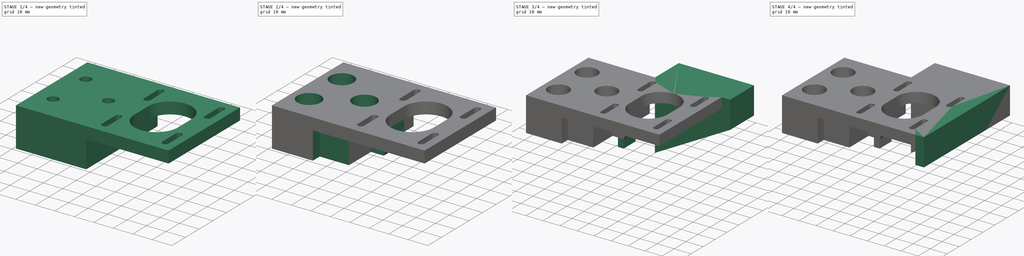
[diagram: build sequence overview — one tinted view per stage of 4, left to right]
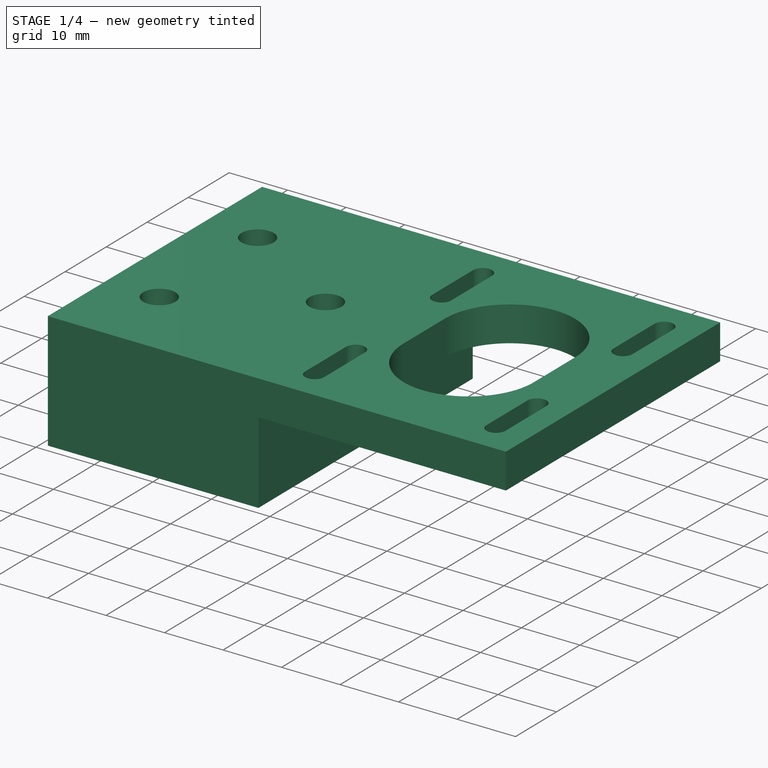
[diagram: stage 1 of 4 — iso view after this stage's code; geometry added in this stage tinted green]
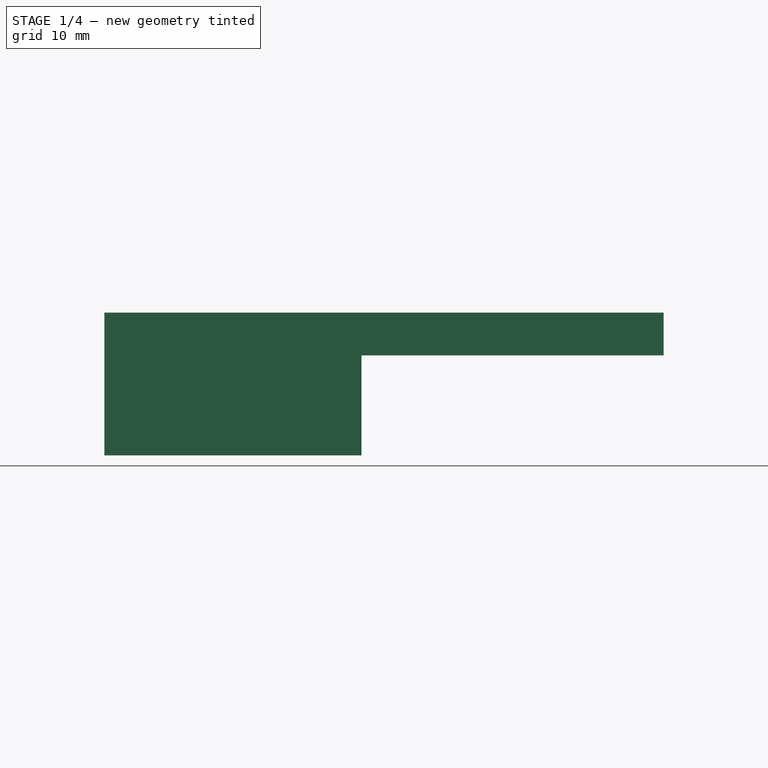
[diagram: stage 1 of 4 — front view after this stage's code; geometry added in this stage tinted green]
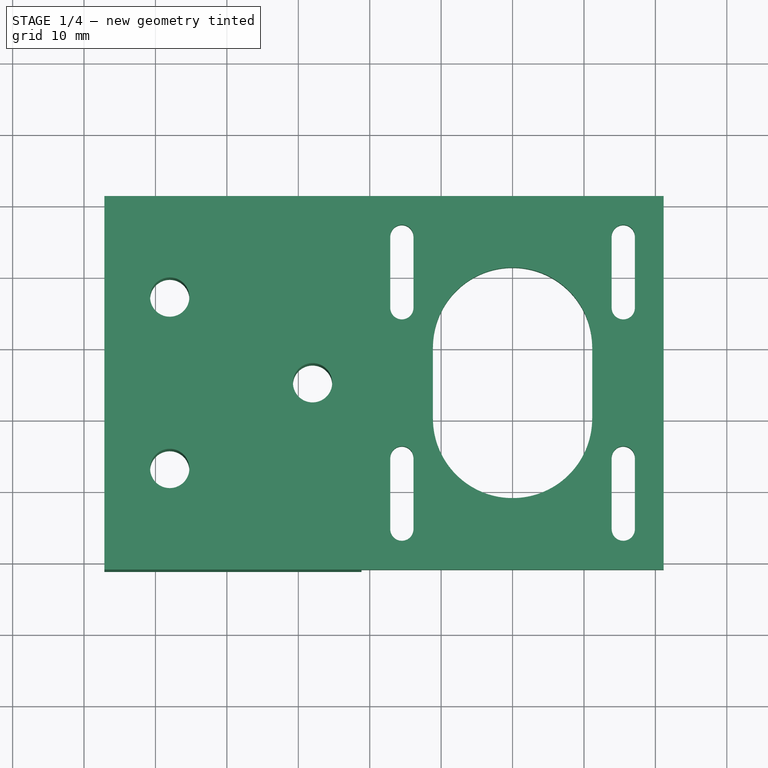
[diagram: stage 1 of 4 — top view after this stage's code; geometry added in this stage tinted green]
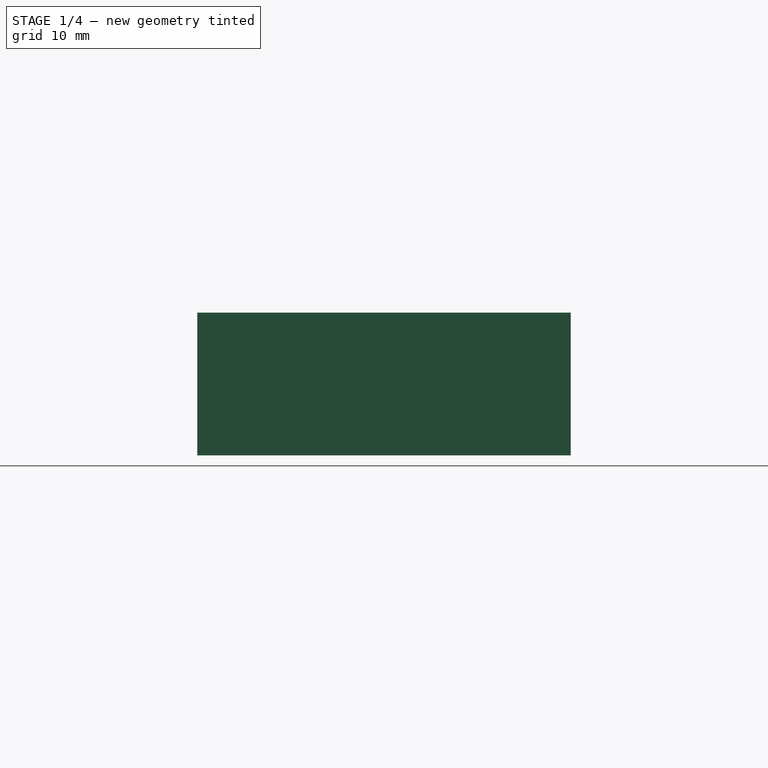
[diagram: stage 1 of 4 — right view after this stage's code; geometry added in this stage tinted green]
FCSTD DOCUMENT  (FreeCAD 0.20R27518 (Git))
Label: B motor bracket
License: All rights reserved
LicenseURL: http://en.wikipedia.org/wiki/All_rights_reserved
objects: Sketcher::SketchObject×11, PartDesign::Pad×6, PartDesign::Pocket×5, PartDesign::Plane×2, Part::Feature×1, PartDesign::SubShapeBinder×1, PartDesign::Body×1
note: 38 computed .brp shape members not serialized (recipe doc carries the construction recipe); baked Part::Feature solids carry a one-line shape summary decoded from their .brp

FEATURE [Part::Feature] Part__Feature  label="17HS4401"
  Placement = pos=(-6e-15,0,46) rot=(0,1,0;3.14159rad)
  shape: bbox 42.3 x 45.3 x 64 mm, 44 faces (baked)
FEATURE [PartDesign::SubShapeBinder] Binder
  BindCopyOnChange = 0
  BindMode = 0
  ClaimChildren = false
  Context = -> Body [Binder.]
  Fuse = false
  MakeFace = true
  PartialLoad = false
  Relative = true
  Support = -> [Part__Feature]
  _Version = 2
FEATURE [Sketcher::SketchObject] Sketch
  ExternalGeometry = -> [Binder]
  FullyConstrained = true
  MapMode = 5
  Support = -> [XY_Plane]
  sketch-geometry (26):
    g0: LineSegment StartX=-21.15 StartY=21.15 StartZ=0 EndX=21.15 EndY=21.15 EndZ=0
    g1: LineSegment StartX=21.15 StartY=21.15 StartZ=0 EndX=21.15 EndY=-31.15 EndZ=0
    g2: LineSegment StartX=21.15 StartY=-31.15 StartZ=0 EndX=-21.15 EndY=-31.15 EndZ=0
    g3: LineSegment StartX=-21.15 StartY=-31.15 StartZ=0 EndX=-21.15 EndY=21.15 EndZ=0
    g4: ArcOfCircle CenterX=-15.5 CenterY=15.5 CenterZ=0 NormalX=0 NormalY=0 NormalZ=1 AngleXU=0 Radius=1.625 StartAngle=0 EndAngle=3.14159
    g5: ArcOfCircle CenterX=-15.5 CenterY=-15.5 CenterZ=0 NormalX=0 NormalY=0 NormalZ=1 AngleXU=0 Radius=1.625 StartAngle=0 EndAngle=3.14159
    g6: ArcOfCircle CenterX=0 CenterY=0 CenterZ=0 NormalX=0 NormalY=0 NormalZ=1 AngleXU=0 Radius=11.15 StartAngle=0 EndAngle=3.14159
    g7: ArcOfCircle CenterX=15.5 CenterY=15.5 CenterZ=0 NormalX=0 NormalY=0 NormalZ=1 AngleXU=0 Radius=1.625 StartAngle=0 EndAngle=3.14159
    g8: ArcOfCircle CenterX=15.5 CenterY=-15.5 CenterZ=0 NormalX=0 NormalY=0 NormalZ=1 AngleXU=0 Radius=1.625 StartAngle=0 EndAngle=3.14159
    g9: LineSegment StartX=-17.125 StartY=15.5 StartZ=0 EndX=-17.125 EndY=5.5 EndZ=0
    g10: ArcOfCircle CenterX=-15.5 CenterY=5.5 CenterZ=0 NormalX=0 NormalY=0 NormalZ=1 AngleXU=0 Radius=1.625 StartAngle=3.14159 EndAngle=6.28318
    g11: LineSegment StartX=13.875 StartY=15.5 StartZ=0 EndX=13.875 EndY=5.5 EndZ=0
    g12: LineSegment StartX=17.125 StartY=15.5 StartZ=0 EndX=17.125 EndY=5.5 EndZ=0
    g13: LineSegment StartX=-17.125 StartY=-15.5 StartZ=0 EndX=-17.125 EndY=-25.5 EndZ=0
    g14: LineSegment StartX=-13.875 StartY=-15.5 StartZ=0 EndX=-13.875 EndY=-25.5 EndZ=0
    g15: LineSegment StartX=13.875 StartY=-15.5 StartZ=0 EndX=13.875 EndY=-25.5 EndZ=0
    g16: LineSegment StartX=17.125 StartY=-15.5 StartZ=0 EndX=17.125 EndY=-25.5 EndZ=0
    g17: LineSegment StartX=-13.875 StartY=15.5 StartZ=0 EndX=-13.875 EndY=5.5 EndZ=0
    g18: ArcOfCircle CenterX=15.5 CenterY=5.5 CenterZ=0 NormalX=0 NormalY=0 NormalZ=1 AngleXU=0 Radius=1.625 StartAngle=3.14159 EndAngle=6.28319
    g19: ArcOfCircle CenterX=-15.5 CenterY=-25.5 CenterZ=0 NormalX=0 NormalY=0 NormalZ=1 AngleXU=0 Radius=1.625 StartAngle=3.14159 EndAngle=6.28319
    g20: ArcOfCircle CenterX=15.5 CenterY=-25.5 CenterZ=0 NormalX=0 NormalY=0 NormalZ=1 AngleXU=0 Radius=1.625 StartAngle=3.14159 EndAngle=6.28319
    g21: LineSegment StartX=-11.15 StartY=1.4e-15 StartZ=0 EndX=-11.15 EndY=-10 EndZ=0
    g22: LineSegment StartX=11.15 StartY=0 StartZ=0 EndX=11.15 EndY=-10 EndZ=0
    g23: ArcOfCircle CenterX=-1e-16 CenterY=-10 CenterZ=0 NormalX=0 NormalY=0 NormalZ=1 AngleXU=0 Radius=11.15 StartAngle=3.14159 EndAngle=6.28319
    g24: LineSegment StartX=-15.5 StartY=15.5 StartZ=0 EndX=-15.5 EndY=21.15 EndZ=0
    g25: LineSegment StartX=-15.5 StartY=-25.5 StartZ=0 EndX=-15.5 EndY=-31.15 EndZ=0
  constraints (82):
    c: Coincident(g0,g1)
    c: Coincident(g1,g2)
    c: Coincident(g2,g3)
    c: Coincident(g3,g0)
    c: Horizontal(g2)
    c: Vertical(g1)
    c: Vertical(g3)
    c: Coincident(g4,g-3)
    c: Coincident(g5,g-5)
    c: Diameter(g4) = 3.25
    c: Coincident(g6,g-1)
    c: PointOnObject(g6,g-1)
    c: PointOnObject(g6,g-1)
    c: Diameter(g6) = 22.3
    c: Horizontal(g4,g4)
    c: Equal(g5,g4)
    c: Horizontal(g5,g5)
    c: Horizontal(g5,g5)
    c: Horizontal(g4,g4)
    c: Coincident(g7,g-4)
    c: Horizontal(g7,g7)
    c: Equal(g4,g7)
    c: Coincident(g8,g-6)
    c: Equal(g8,g4)
    c: Horizontal(g8,g8)
    c: Horizontal(g8,g8)
    c: Horizontal(g7,g7)
    c: Coincident(g9,g4)
    c: Vertical(g9)
    c: Coincident(g10,g9)
    c: Equal(g10,g4)
    c: Vertical(g10,g4)
    c: DistanceY(g10,g4) = 10
    c: Coincident(g11,g7)
    c: Vertical(g11)
    c: Coincident(g12,g7)
    c: Vertical(g12)
    c: Coincident(g13,g5)
    c: Vertical(g13)
    c: Coincident(g14,g5)
    c: Vertical(g14)
    c: Coincident(g15,g8)
    c: Coincident(g16,g8)
    c: Vertical(g16)
    c: Vertical(g15)
    c: Equal(g9,g11)
    c: Equal(g11,g12)
    c: Equal(g12,g13)
    c: Equal(g13,g14)
    c: Equal(g14,g15)
    c: Equal(g15,g16)
    c: Coincident(g17,g4)
    c: Coincident(g17,g10)
    c: Equal(g17,g9)
    c: Coincident(g18,g11)
    c: Coincident(g18,g12)
    c: Coincident(g19,g13)
    c: Coincident(g19,g14)
    c: Coincident(g20,g15)
    c: Coincident(g20,g16)
    c: Equal(g10,g19)
    c: Equal(g19,g18)
    c: Equal(g18,g20)
    c: Coincident(g21,g6)
    c: Vertical(g21)
    c: Coincident(g22,g6)
    c: Vertical(g22)
    c: Equal(g9,g21)
    c: Equal(g21,g22)
    c: Coincident(g23,g21)
    c: Coincident(g23,g22)
    c: Equal(g6,g23)
    c: Symmetric(g0,g0,g-2)
    c: Coincident(g24,g4)
    c: Vertical(g24)
    c: PointOnObject(g24,g0)
    c: Coincident(g25,g19)
    c: PointOnObject(g25,g2)
    c: Vertical(g25)
    c: Equal(g25,g24)
    c: PointOnObject(g-8,g3)
    c: PointOnObject(g-7,g0)
FEATURE [PartDesign::Pad] Pad
  Direction = (0,0,1)
  Length = 6
  Length2 = 100
  Profile = -> Sketch
  ReferenceAxis = -> Sketch [N_Axis]
  Refine = true
  Type = 0
FEATURE [Sketcher::SketchObject] Sketch001
  ExternalGeometry = -> [Pad]
  FullyConstrained = true
  MapMode = 5
  Placement = pos=(-21.15,0,0) rot=(0.57735,-0.57735,-0.57735;2.0944rad)
  Support = -> [Pad]
  sketch-geometry (4):
    g0: LineSegment StartX=-21.15 StartY=6 StartZ=0 EndX=31.15 EndY=6 EndZ=0
    g1: LineSegment StartX=31.15 StartY=6 StartZ=0 EndX=31.15 EndY=-14 EndZ=0
    g2: LineSegment StartX=31.15 StartY=-14 StartZ=0 EndX=-21.15 EndY=-14 EndZ=0
    g3: LineSegment StartX=-21.15 StartY=-14 StartZ=0 EndX=-21.15 EndY=6 EndZ=0
  constraints (10):
    c: Coincident(g0,g1)
    c: Coincident(g1,g2)
    c: Coincident(g2,g3)
    c: Coincident(g3,g0)
    c: Horizontal(g2)
    c: Vertical(g1)
    c: Vertical(g3)
    c: DistanceY(g1,g-1) = 14
    c: Coincident(g-3,g0)
    c: Coincident(g0,g-4)
FEATURE [PartDesign::Pad] Pad001
  BaseFeature = -> Pad
  Direction = (-1,0,0)
  Length = 36
  Length2 = 100
  Profile = -> Sketch001
  ReferenceAxis = -> Sketch001 [N_Axis]
  Refine = true
  Type = 0
FEATURE [Sketcher::SketchObject] Sketch003
  FullyConstrained = true
  MapMode = 5
  Placement = pos=(0,0,6) rot=(0,0,1;0rad)
  Support = -> [Pad001]
  sketch-geometry (5):
    g0: Circle CenterX=-48 CenterY=7 CenterZ=0 NormalX=0 NormalY=0 NormalZ=1 AngleXU=0 Radius=2.75
    g1: Circle CenterX=-48 CenterY=-17 CenterZ=0 NormalX=0 NormalY=0 NormalZ=1 AngleXU=0 Radius=2.75
    g2: Circle CenterX=-28 CenterY=-5 CenterZ=0 NormalX=0 NormalY=0 NormalZ=1 AngleXU=0 Radius=2.75
    g3: LineSegment StartX=-48 StartY=7 StartZ=0 EndX=-48 EndY=-5 EndZ=0
    g4: LineSegment StartX=-48 StartY=-5 StartZ=0 EndX=-48 EndY=-17 EndZ=0
  constraints (14):
    c: Diameter(g0) = 5.5
    c: Equal(g0,g1)
    c: DistanceX(g0,g-1) = 48
    c: Equal(g0,g2)
    c: DistanceX(g0,g2) = 20
    c: DistanceY(g2,g-1) = 5
    c: Coincident(g3,g0)
    c: Vertical(g3)
    c: Coincident(g4,g3)
    c: Vertical(g4)
    c: Coincident(g1,g4)
    c: Equal(g3,g4)
    c: Horizontal(g3,g2)
    c: DistanceY(g4,g4) = 12
FEATURE [PartDesign::Pocket] Pocket001
  BaseFeature = -> Pad001
  Direction = (0,0,-1)
  Length = 5
  Length2 = 100
  Profile = -> Sketch003
  ReferenceAxis = -> Sketch003 [N_Axis]
  Refine = true
  Type = 1
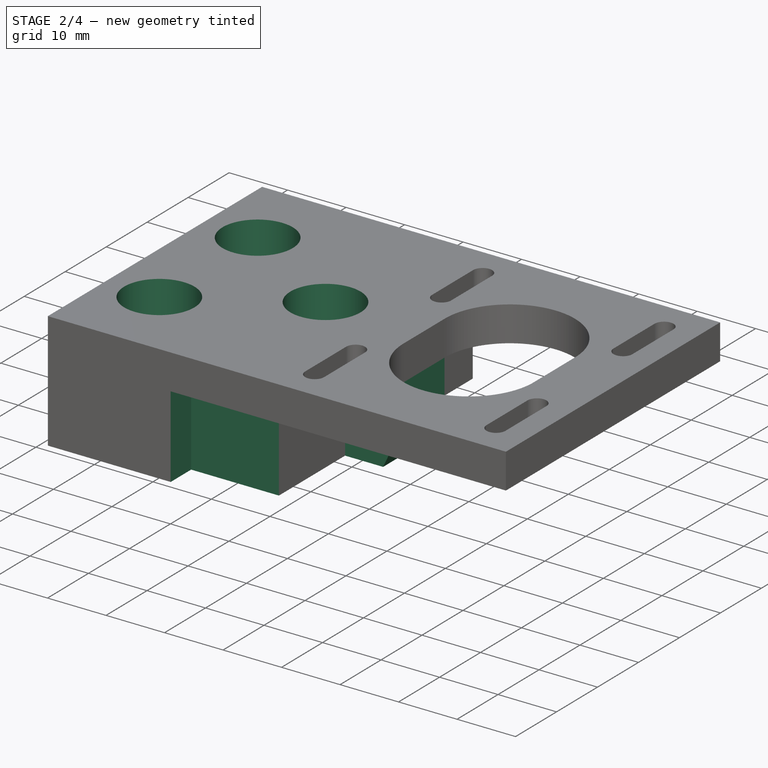
[diagram: stage 2 of 4 — iso view after this stage's code; geometry added in this stage tinted green]
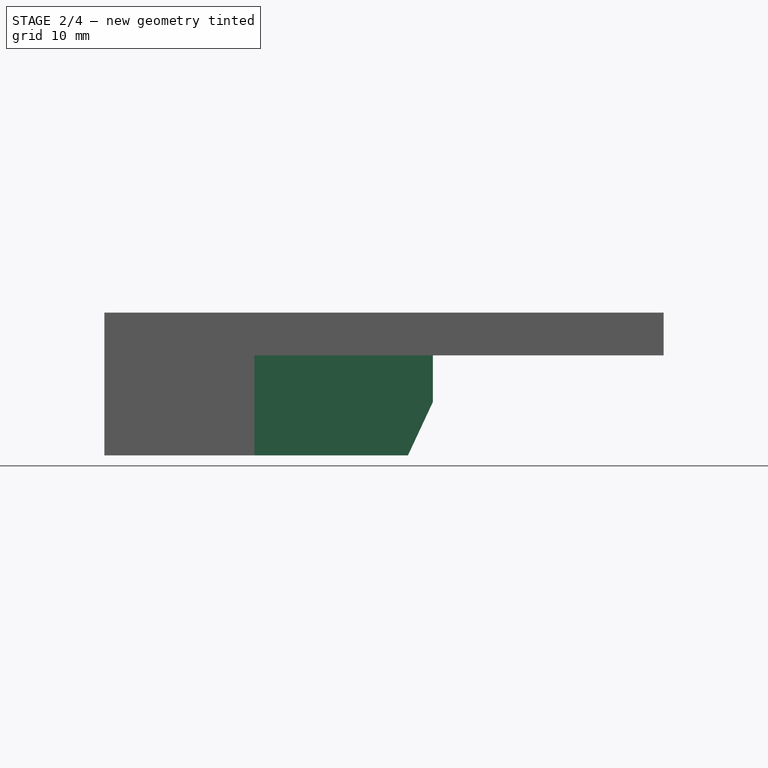
[diagram: stage 2 of 4 — front view after this stage's code; geometry added in this stage tinted green]
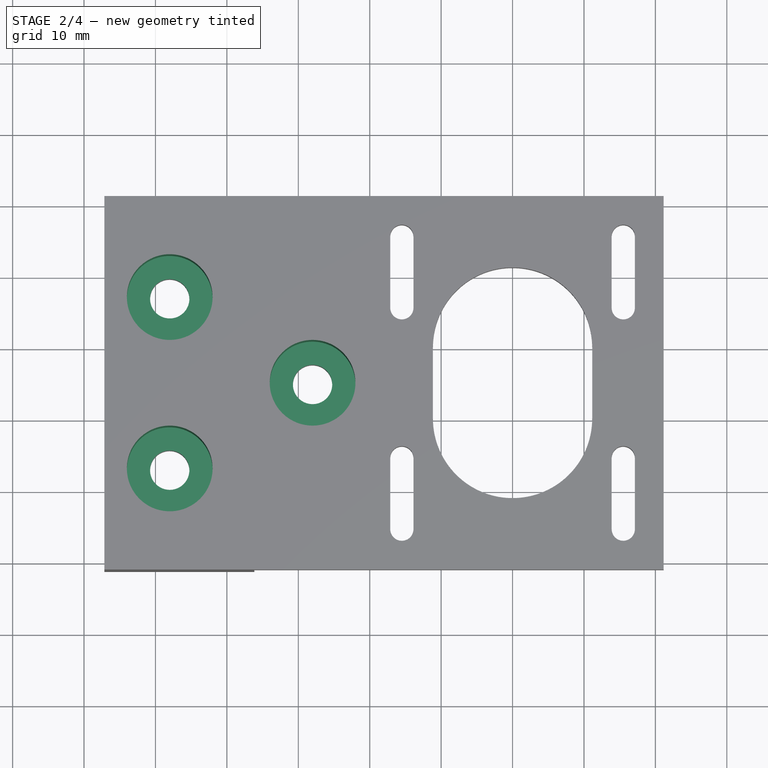
[diagram: stage 2 of 4 — top view after this stage's code; geometry added in this stage tinted green]
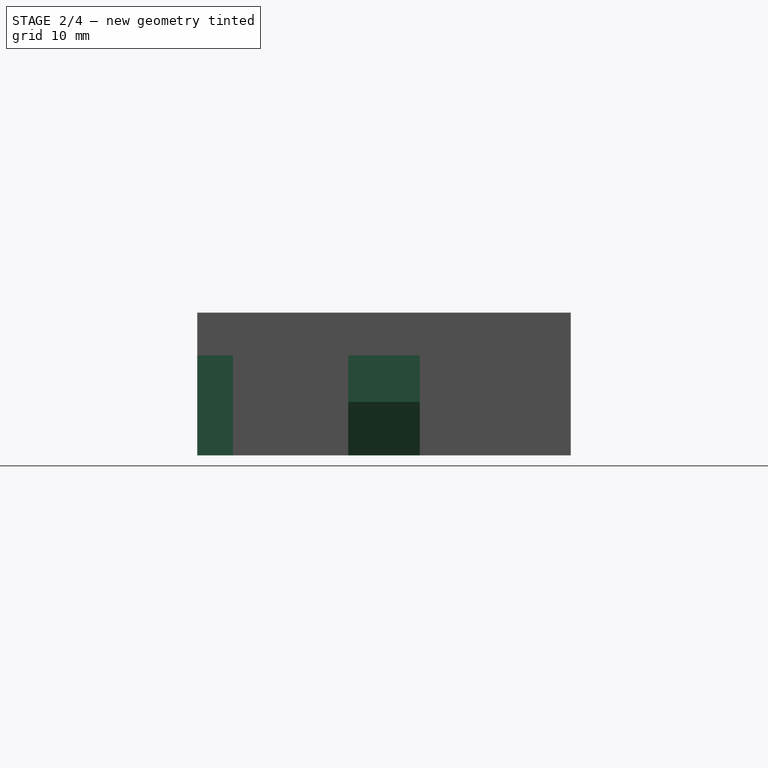
[diagram: stage 2 of 4 — right view after this stage's code; geometry added in this stage tinted green]
FEATURE [Sketcher::SketchObject] Sketch004
  FullyConstrained = true
  MapMode = 5
  Placement = pos=(0,0,6) rot=(0,0,1;0rad)
  Support = -> [Pocket001]
  sketch-geometry (5):
    g0: Circle CenterX=-48 CenterY=7 CenterZ=0 NormalX=0 NormalY=0 NormalZ=1 AngleXU=0 Radius=6
    g1: Circle CenterX=-48 CenterY=-17 CenterZ=0 NormalX=0 NormalY=0 NormalZ=1 AngleXU=0 Radius=6
    g2: Circle CenterX=-28 CenterY=-5 CenterZ=0 NormalX=0 NormalY=0 NormalZ=1 AngleXU=0 Radius=6
    g3: LineSegment StartX=-48 StartY=7 StartZ=0 EndX=-48 EndY=-5 EndZ=0
    g4: LineSegment StartX=-48 StartY=-5 StartZ=0 EndX=-48 EndY=-17 EndZ=0
  constraints (14):
    c: Equal(g1,g0)
    c: Diameter(g0) = 12
    c: Equal(g0,g2)
    c: DistanceY(g2,g-1) = 5
    c: Coincident(g3,g0)
    c: Vertical(g3)
    c: Coincident(g4,g3)
    c: Coincident(g4,g1)
    c: Vertical(g4)
    c: Horizontal(g3,g2)
    c: Equal(g4,g3)
    c: DistanceX(g0,g2) = 20
    c: DistanceY(g4,g4) = 12
    c: DistanceX(g2,g-1) = 28
FEATURE [PartDesign::Pocket] Pocket002
  BaseFeature = -> Pocket001
  Direction = (0,0,-1)
  Length = 0
  Length2 = 100
  Offset = 6
  Profile = -> Sketch004
  ReferenceAxis = -> Sketch004 [N_Axis]
  Refine = true
  Reversed = true
  Type = 3
  UpToFace = -> Pocket001 [Face7]
FEATURE [Sketcher::SketchObject] Sketch005
  ExternalGeometry = -> [Pocket002]
  FullyConstrained = true
  MapMode = 5
  Placement = pos=(0,-31.15,0) rot=(1,0,0;1.5708rad)
  Support = -> [Pocket002]
  sketch-geometry (4):
    g0: LineSegment StartX=-21.15 StartY=-14 StartZ=0 EndX=-36.15 EndY=-14 EndZ=0
    g1: LineSegment StartX=-36.15 StartY=-14 StartZ=0 EndX=-36.15 EndY=0 EndZ=0
    g2: LineSegment StartX=-36.15 StartY=0 StartZ=0 EndX=-21.15 EndY=0 EndZ=0
    g3: LineSegment StartX=-21.15 StartY=0 StartZ=0 EndX=-21.15 EndY=-14 EndZ=0
  constraints (11):
    c: Coincident(g0,g1)
    c: Coincident(g1,g2)
    c: Coincident(g2,g3)
    c: Coincident(g3,g0)
    c: Horizontal(g0)
    c: Horizontal(g2)
    c: Vertical(g1)
    c: Vertical(g3)
    c: Coincident(g0,g-3)
    c: PointOnObject(g1,g-1)
    c: DistanceX(g2,g2) = 15
FEATURE [PartDesign::Pocket] Pocket003
  BaseFeature = -> Pocket002
  Direction = (0,1,-2e-16)
  Length = 5
  Length2 = 100
  Profile = -> Sketch005
  ReferenceAxis = -> Sketch005 [N_Axis]
  Refine = true
  Type = 0
FEATURE [Sketcher::SketchObject] Sketch006
  FullyConstrained = true
  MapMode = 5
  Placement = pos=(0,0,0) rot=(1,0,0;1.5708rad)
  Support = -> [XZ_Plane]
  sketch-geometry (5):
    g0: LineSegment StartX=-11.15 StartY=-6.5 StartZ=0 EndX=-14.65 EndY=-14 EndZ=0
    g1: LineSegment StartX=-21.15 StartY=-14 StartZ=0 EndX=-14.65 EndY=-14 EndZ=0
    g2: LineSegment StartX=-11.15 StartY=0 StartZ=0 EndX=-11.15 EndY=-6.5 EndZ=0
    g3: LineSegment StartX=-21.15 StartY=-14 StartZ=0 EndX=-21.15 EndY=0 EndZ=0
    g4: LineSegment StartX=-21.15 StartY=0 StartZ=0 EndX=-11.15 EndY=0 EndZ=0
  constraints (15):
    c: Horizontal(g1)
    c: Vertical(g2)
    c: Coincident(g0,g2)
    c: Coincident(g1,g0)
    c: Equal(g1,g2)
    c: DistanceX(g1,g1) = 6.5
    c: Coincident(g3,g1)
    c: Coincident(g4,g3)
    c: Coincident(g4,g2)
    c: Horizontal(g4)
    c: Vertical(g3)
    c: PointOnObject(g2,g-1)
    c: DistanceX(g3,g-1) = 21.15
    c: DistanceX(g4,g4) = 10
    c: DistanceY(g3,g3) = 14
FEATURE [PartDesign::Pad] Pad002
  BaseFeature = -> Pocket003
  Direction = (0,-1,-2e-16)
  Length = 10
  Length2 = 100
  Profile = -> Sketch006
  ReferenceAxis = -> Sketch006 [N_Axis]
  Refine = true
  Type = 0
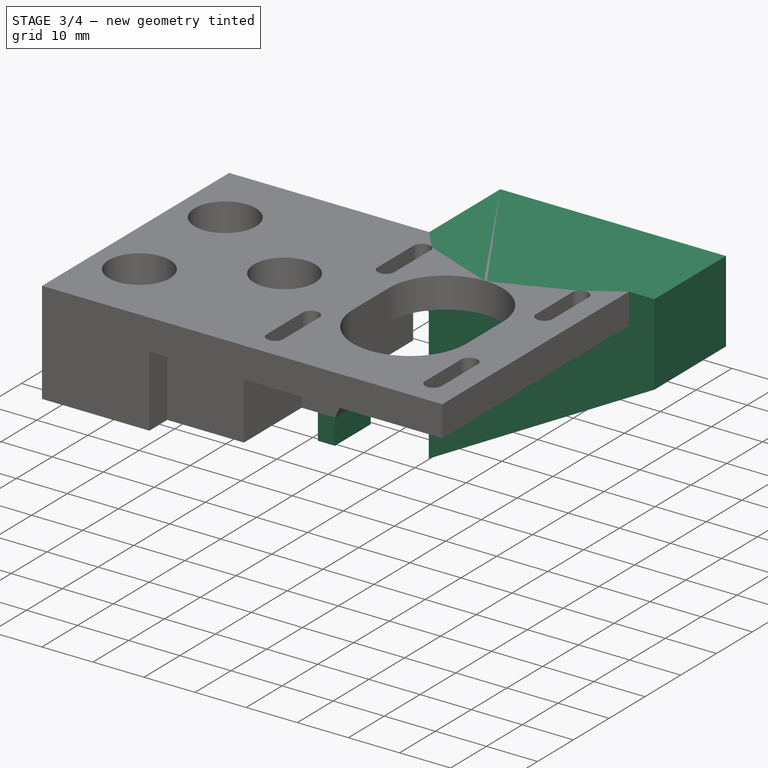
[diagram: stage 3 of 4 — iso view after this stage's code; geometry added in this stage tinted green]
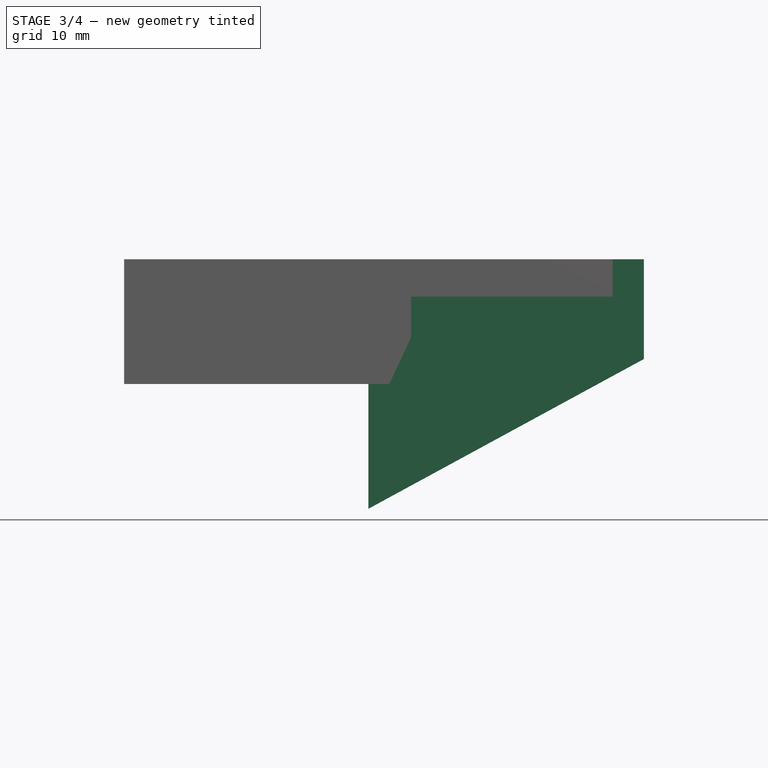
[diagram: stage 3 of 4 — front view after this stage's code; geometry added in this stage tinted green]
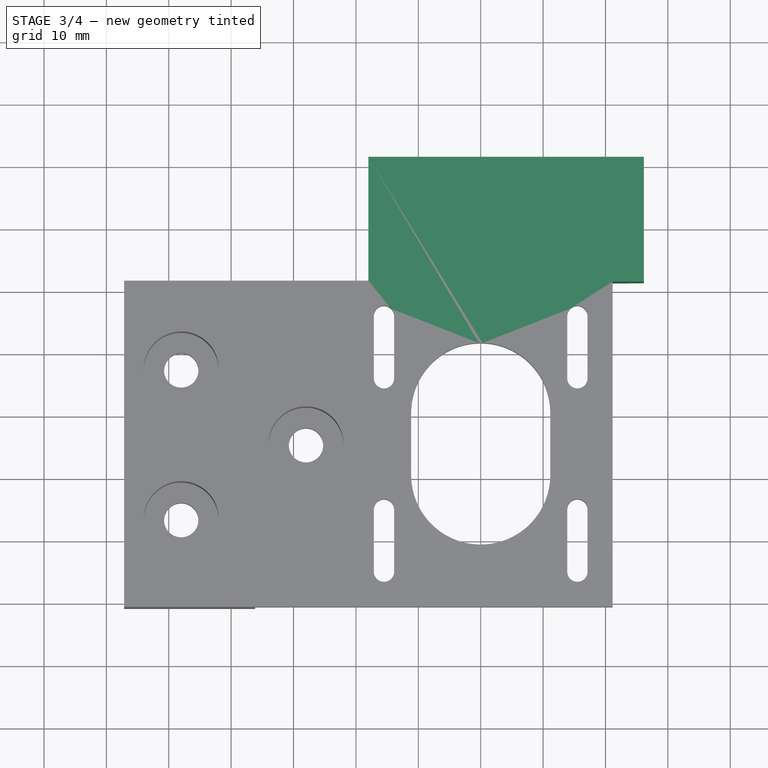
[diagram: stage 3 of 4 — top view after this stage's code; geometry added in this stage tinted green]
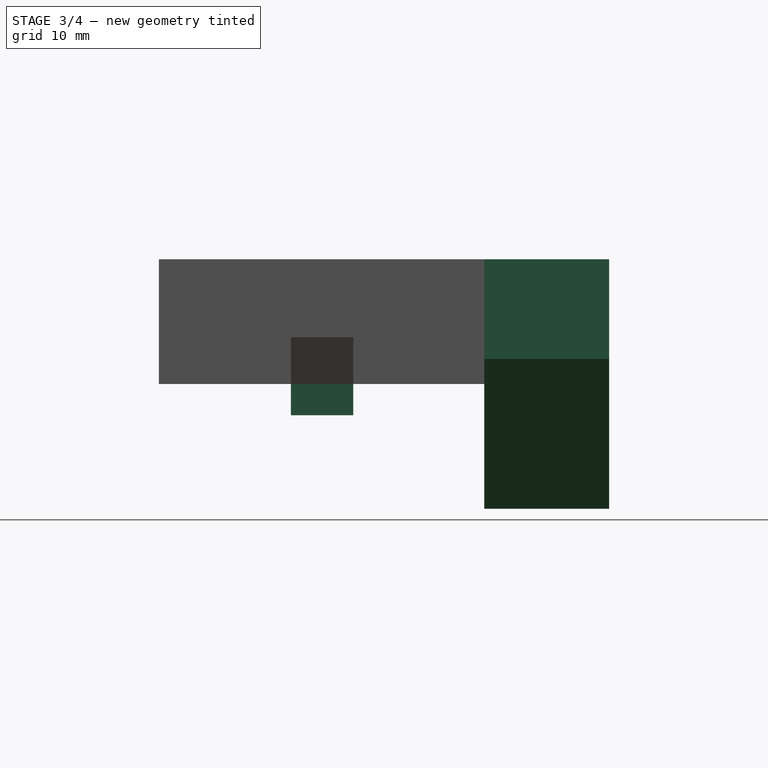
[diagram: stage 3 of 4 — right view after this stage's code; geometry added in this stage tinted green]
FEATURE [Sketcher::SketchObject] Sketch007
  ExternalGeometry = -> [Pad002]
  FullyConstrained = true
  MapMode = 5
  Placement = pos=(-1e-16,0,-14) rot=(1,0,0;3.14159rad)
  Support = -> [Pad002]
  sketch-geometry (4):
    g0: LineSegment StartX=-18 StartY=10 StartZ=0 EndX=-14.65 EndY=10 EndZ=0
    g1: LineSegment StartX=-14.65 StartY=10 StartZ=0 EndX=-14.65 EndY=0 EndZ=0
    g2: LineSegment StartX=-14.65 StartY=0 StartZ=0 EndX=-18 EndY=0 EndZ=0
    g3: LineSegment StartX=-18 StartY=0 StartZ=0 EndX=-18 EndY=10 EndZ=0
  constraints (11):
    c: Coincident(g0,g1)
    c: Coincident(g1,g2)
    c: Coincident(g2,g3)
    c: Coincident(g3,g0)
    c: Horizontal(g0)
    c: Horizontal(g2)
    c: Vertical(g1)
    c: Vertical(g3)
    c: PointOnObject(g1,g-1)
    c: DistanceX(g0,g0) = 3.35
    c: Coincident(g0,g-3)
FEATURE [PartDesign::Pad] Pad003
  BaseFeature = -> Pad002
  Direction = (0,0,-1)
  Length = 5
  Length2 = 100
  Profile = -> Sketch007
  ReferenceAxis = -> Sketch007 [N_Axis]
  Refine = true
  Type = 0
FEATURE [PartDesign::Plane] DatumPlane
  AttachmentOffset = pos=(0,0,21) rot=(0,0,1;0rad)
  Length = 60
  MapMode = 5
  Placement = pos=(0,21,4.7e-15) rot=(0,0.707107,0.707107;3.14159rad)
  ResizeMode = 0
  Support = -> [XZ_Plane]
  Width = 60
FEATURE [Sketcher::SketchObject] Sketch008
  FullyConstrained = true
  MapMode = 5
  Placement = pos=(0,21,4.7e-15) rot=(0,0.707107,0.707107;3.14159rad)
  Support = -> [DatumPlane]
  sketch-geometry (4):
    g0: LineSegment StartX=18 StartY=6 StartZ=0 EndX=18 EndY=-34 EndZ=0
    g1: LineSegment StartX=-26.15 StartY=6 StartZ=0 EndX=-26.15 EndY=-10 EndZ=0
    g2: LineSegment StartX=-26.15 StartY=6 StartZ=0 EndX=18 EndY=6 EndZ=0
    g3: LineSegment StartX=-26.15 StartY=-10 StartZ=0 EndX=18 EndY=-34 EndZ=0
  constraints (12):
    c: Vertical(g0)
    c: DistanceX(g-1,g0) = 18
    c: DistanceY(g0) = 6
    c: DistanceY(g0,g0) = 40
    c: Vertical(g1)
    c: Coincident(g2,g1)
    c: Coincident(g2,g0)
    c: Horizontal(g2)
    c: DistanceY(g1,g-1) = 10
    c: Coincident(g3,g1)
    c: Coincident(g3,g0)
    c: DistanceX(g2,g2) = 44.15
FEATURE [PartDesign::Pad] Pad004
  BaseFeature = -> Pad003
  Direction = (0,1,2e-16)
  Length = 20
  Length2 = 10
  Profile = -> Sketch008
  ReferenceAxis = -> Sketch008 [N_Axis]
  Refine = true
  Type = 0
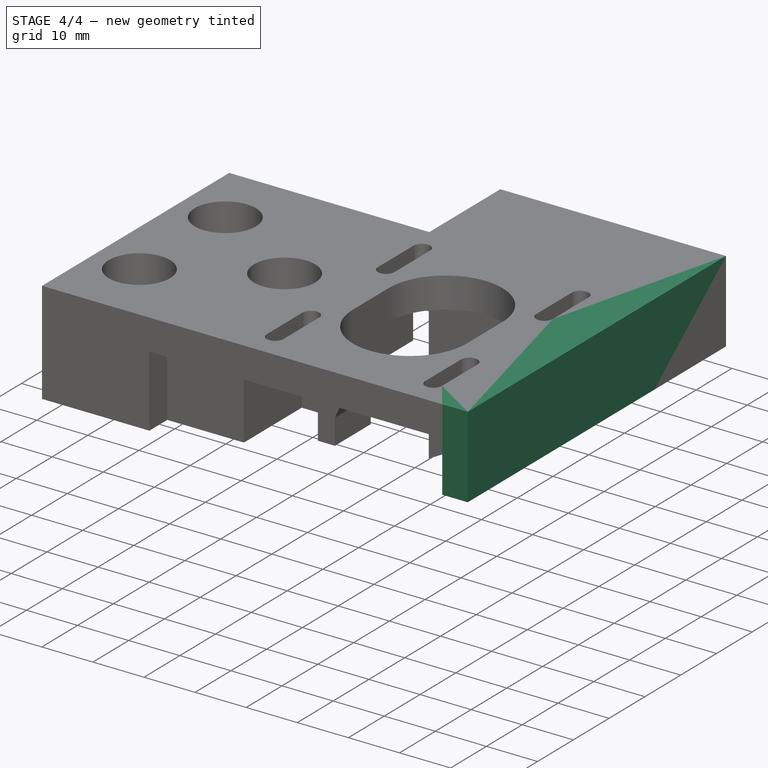
[diagram: stage 4 of 4 — iso view after this stage's code; geometry added in this stage tinted green]
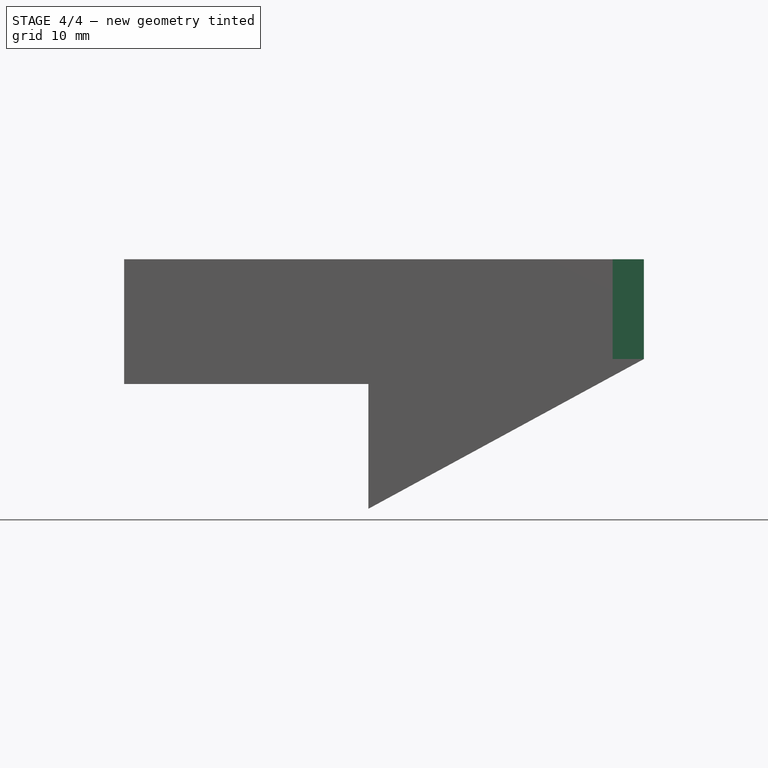
[diagram: stage 4 of 4 — front view after this stage's code; geometry added in this stage tinted green]
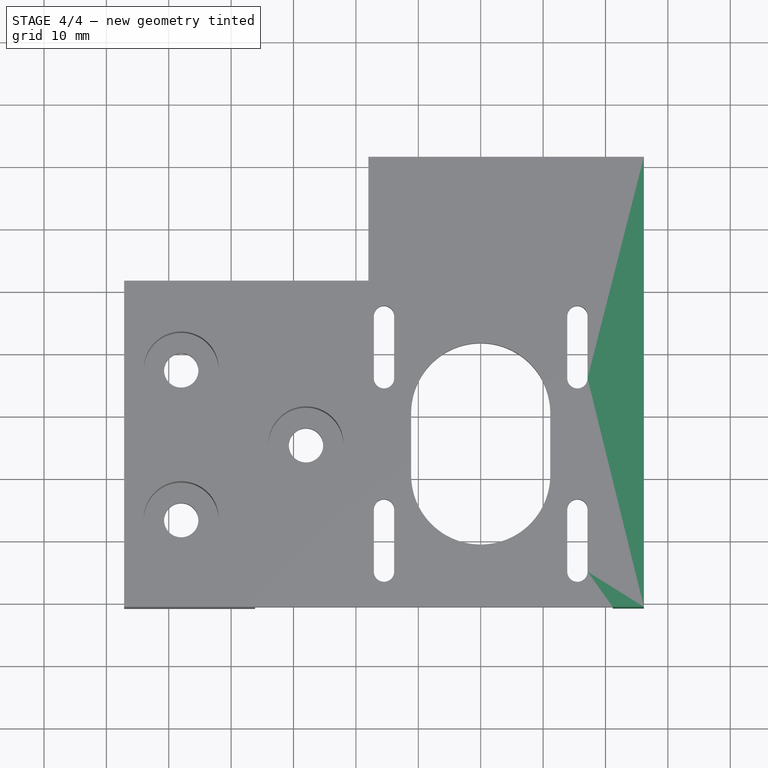
[diagram: stage 4 of 4 — top view after this stage's code; geometry added in this stage tinted green]
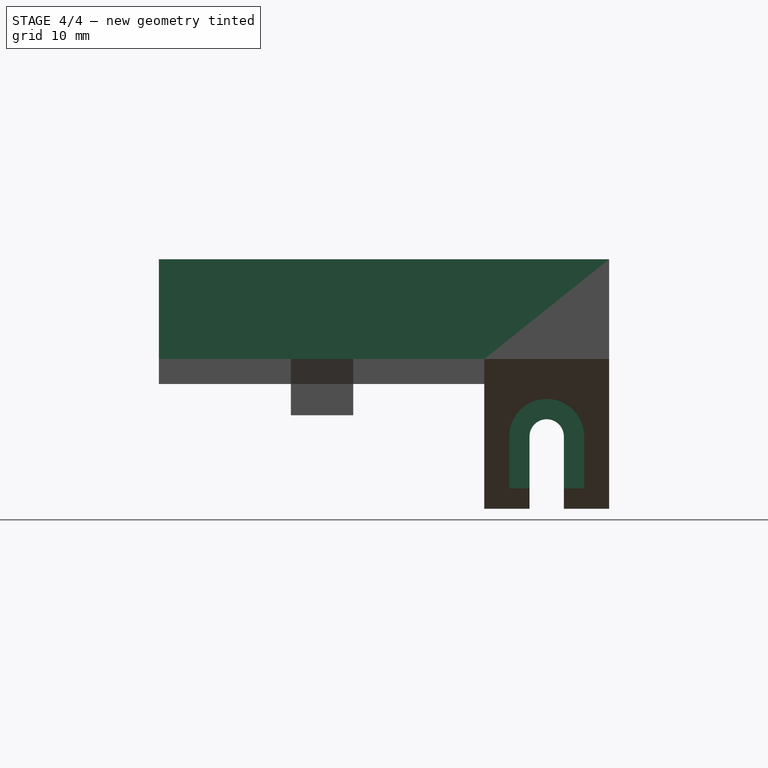
[diagram: stage 4 of 4 — right view after this stage's code; geometry added in this stage tinted green]
FEATURE [Sketcher::SketchObject] Sketch009
  FullyConstrained = true
  MapMode = 5
  Placement = pos=(0,21,4.7e-15) rot=(0,0.707107,0.707107;3.14159rad)
  Support = -> [DatumPlane]
  sketch-geometry (4):
    g0: LineSegment StartX=-26.15 StartY=6 StartZ=0 EndX=-21.15 EndY=6 EndZ=0
    g1: LineSegment StartX=-21.15 StartY=6 StartZ=0 EndX=-21.15 EndY=-10 EndZ=0
    g2: LineSegment StartX=-21.15 StartY=-10 StartZ=0 EndX=-26.15 EndY=-10 EndZ=0
    g3: LineSegment StartX=-26.15 StartY=-10 StartZ=0 EndX=-26.15 EndY=6 EndZ=0
  constraints (12):
    c: Coincident(g0,g1)
    c: Coincident(g1,g2)
    c: Coincident(g2,g3)
    c: Coincident(g3,g0)
    c: Horizontal(g0)
    c: Horizontal(g2)
    c: Vertical(g1)
    c: Vertical(g3)
    c: DistanceX(g0,g-1) = 21.15
    c: DistanceX(g0,g0) = 5
    c: DistanceY(g3,g3) = 16
    c: DistanceY(g0) = 6
FEATURE [PartDesign::Pad] Pad005
  BaseFeature = -> Pad004
  Direction = (0,1,2e-16)
  Length = 52.15
  Length2 = 10
  Profile = -> Sketch009
  ReferenceAxis = -> Sketch009 [N_Axis]
  Refine = true
  Reversed = true
  Type = 0
FEATURE [PartDesign::Plane] DatumPlane001
  AttachmentOffset = pos=(0,0,12) rot=(0,0,1;0rad)
  Length = 60
  MapMode = 5
  Placement = pos=(-12,2.7e-15,-2.7e-15) rot=(-0.57735,0.57735,0.57735;4.18879rad)
  ResizeMode = 0
  Support = -> [YZ_Plane]
  Width = 60
FEATURE [Sketcher::SketchObject] Sketch010
  FullyConstrained = true
  MapMode = 5
  Placement = pos=(-12,2.7e-15,-2.7e-15) rot=(-0.57735,0.57735,0.57735;4.18879rad)
  Support = -> [DatumPlane001]
  sketch-geometry (4):
    g0: ArcOfCircle CenterX=-31 CenterY=-22.4 CenterZ=0 NormalX=0 NormalY=0 NormalZ=1 AngleXU=0 Radius=6 StartAngle=-9.77e-14 EndAngle=3.14159
    g1: ArcOfCircle CenterX=-31 CenterY=-42.4 CenterZ=0 NormalX=0 NormalY=0 NormalZ=1 AngleXU=0 Radius=6 StartAngle=3.14159 EndAngle=6.28319
    g2: LineSegment StartX=-37 StartY=-22.4 StartZ=0 EndX=-37 EndY=-42.4 EndZ=0
    g3: LineSegment StartX=-25 StartY=-42.4 StartZ=0 EndX=-25 EndY=-22.4 EndZ=0
  constraints (10):
    c: Tangent(g0,g2) = -1.5708
    c: Tangent(g2,g1) = -1.5708
    c: Tangent(g1,g3) = -1.5708
    c: Tangent(g3,g0) = -1.5708
    c: Equal(g0,g1)
    c: Vertical(g2)
    c: DistanceY(g3,g3) = 20
    c: DistanceX(g0,g-1) = 31
    c: Diameter(g0) = 12
    c: DistanceY(g0,g-1) = 22.4
FEATURE [PartDesign::Pocket] Pocket
  BaseFeature = -> Pad005
  Direction = (1,-4e-16,2e-16)
  Length = 5
  Length2 = 5
  Profile = -> Sketch010
  ReferenceAxis = -> Sketch010 [N_Axis]
  Refine = true
  Type = 1
FEATURE [Sketcher::SketchObject] Sketch011
  ExternalGeometry = -> [Sketch010]
  FullyConstrained = true
  MapMode = 5
  Placement = pos=(-12,2.7e-15,-2.7e-15) rot=(-0.57735,0.57735,0.57735;4.18879rad)
  Support = -> [DatumPlane001]
  sketch-geometry (4):
    g0: ArcOfCircle CenterX=-31 CenterY=-22.4 CenterZ=0 NormalX=0 NormalY=0 NormalZ=1 AngleXU=0 Radius=2.75 StartAngle=0 EndAngle=3.14159
    g1: ArcOfCircle CenterX=-31 CenterY=-34.4 CenterZ=0 NormalX=0 NormalY=0 NormalZ=1 AngleXU=0 Radius=2.75 StartAngle=3.14159 EndAngle=6.28319
    g2: LineSegment StartX=-33.75 StartY=-22.4 StartZ=0 EndX=-33.75 EndY=-34.4 EndZ=0
    g3: LineSegment StartX=-28.25 StartY=-34.4 StartZ=0 EndX=-28.25 EndY=-22.4 EndZ=0
  constraints (9):
    c: Tangent(g0,g2) = -1.5708
    c: Tangent(g2,g1) = -1.5708
    c: Tangent(g1,g3) = -1.5708
    c: Tangent(g3,g0) = -1.5708
    c: Equal(g0,g1)
    c: Coincident(g0,g-3)
    c: Vertical(g2)
    c: Diameter(g0) = 5.5
    c: DistanceY(g3,g3) = 12
FEATURE [PartDesign::Pocket] Pocket004
  BaseFeature = -> Pocket
  Direction = (1,-4e-16,2e-16)
  Length = 5
  Length2 = 5
  Profile = -> Sketch011
  ReferenceAxis = -> Sketch011 [N_Axis]
  Refine = true
  Reversed = true
  Type = 1
FEATURE [PartDesign::Body] Body
  Group = -> [Sketch,Binder,Pad,Sketch001,Pad001,Sketch003,Pocket001,Sketch004,Pocket002,Sketch005,Pocket003,Sketch006,Pad002,Sketch007,Pad003,DatumPlane,Sketch008,Pad004,Sketch009,Pad005,DatumPlane001,Sketch010,Pocket,Sketch011,Pocket004]
  Origin = -> Origin
  Tip = -> Pocket004
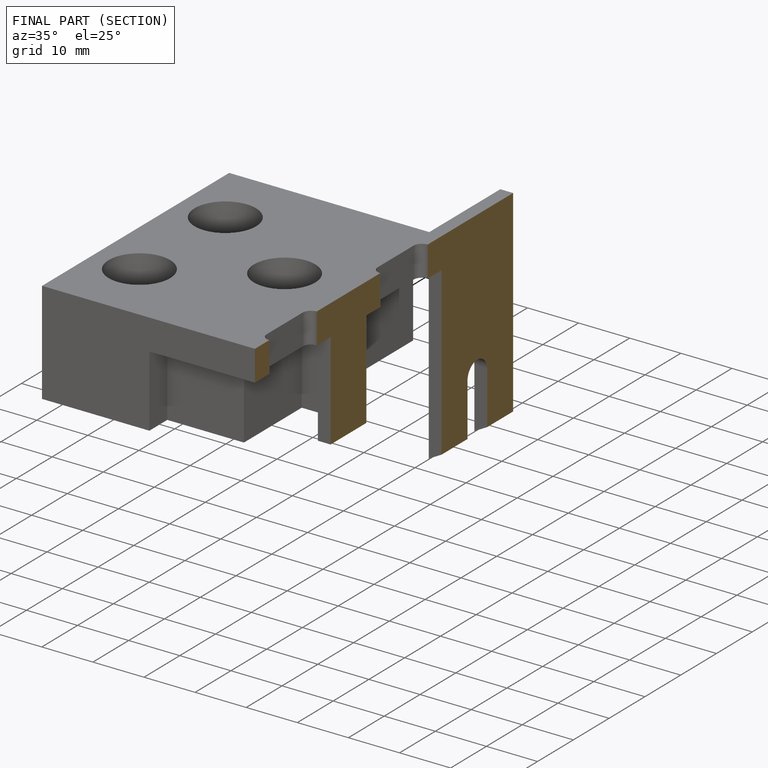
[diagram: finished part — half-section view (interior)]
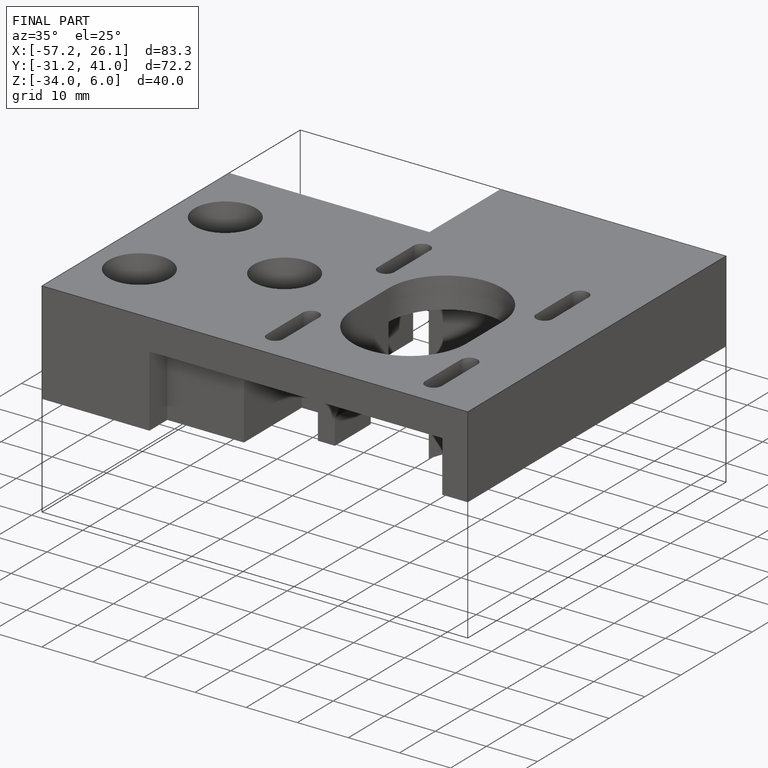
[diagram: finished part — iso view with bounding-box wireframe]
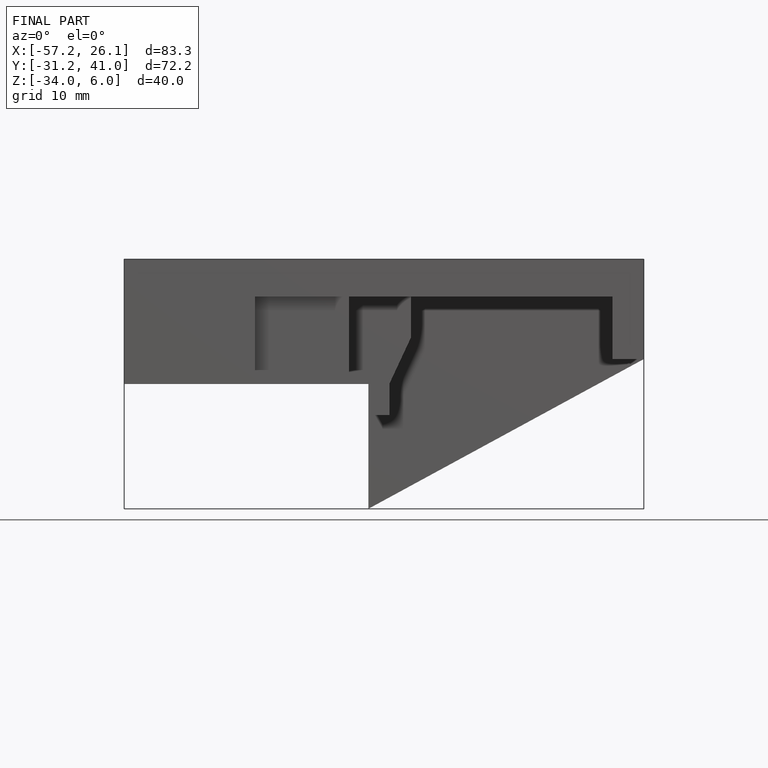
[diagram: finished part — front view with bounding-box wireframe]
